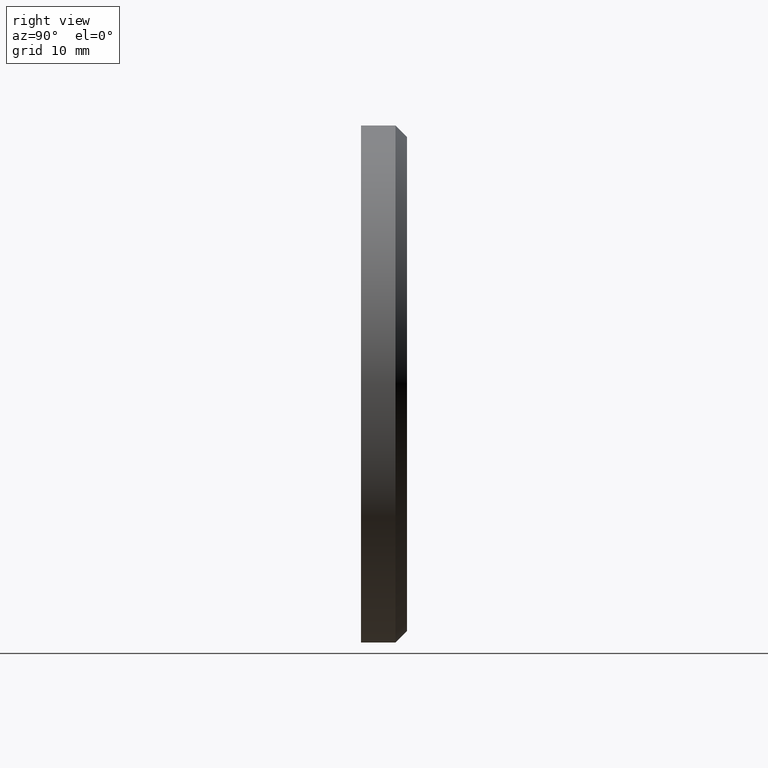
[diagram: clean part render]
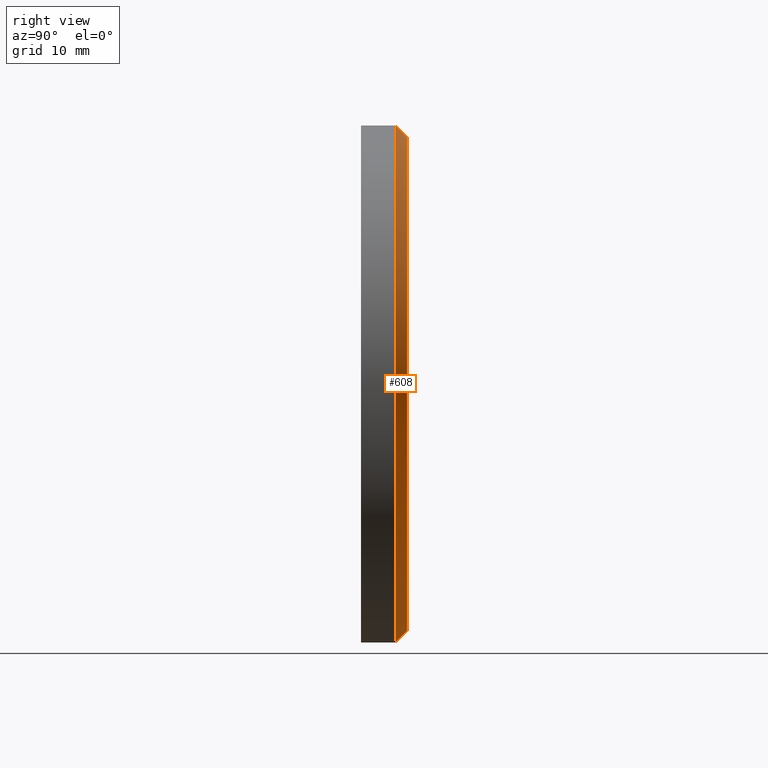
[diagram: same view with one face highlighted and labeled with its STEP entity id]
A machine part, right view. The second image highlights one B-rep face of the part: STEP entity #608.
In plain terms, the highlighted conical surface has half-angle 45 deg.
Its self-contained STEP definition (entity closure, byte-faithful):
#30 = VERTEX_POINT ( 'NONE', #8925 ) ;
#133 = EDGE_CURVE ( 'NONE', #8876, #4189, #2468, .T. ) ;
#455 = CIRCLE ( 'NONE', #8377, 22.50000000000000355 ) ;
#608 = ADVANCED_FACE ( 'NONE', ( #13740 ), #4078, .T. ) ;
#1132 = VECTOR ( 'NONE', #12255, 1000.000000000000000 ) ;
#2326 = CARTESIAN_POINT ( 'NONE',  ( 0.000000000000000000, 2.000000000000000000, -21.49999999999999289 ) ) ;
#2468 = CIRCLE ( 'NONE', #4518, 21.49999999999999289 ) ;
#3465 = DIRECTION ( 'NONE',  ( 0.000000000000000000, -0.7071067811865463515, -0.7071067811865487940 ) ) ;
#3472 = CARTESIAN_POINT ( 'NONE',  ( 2.694222958124176415E-15, 2.000000000000000000, 21.49999999999999289 ) ) ;
#4078 = CONICAL_SURFACE ( 'NONE', #12986, 21.49999999999999289, 0.7853981633974500554 ) ;
#4189 = VERTEX_POINT ( 'NONE', #5263 ) ;
#4518 = AXIS2_PLACEMENT_3D ( 'NONE', #9462, #10444, #6072 ) ;
#4720 = EDGE_LOOP ( 'NONE', ( #14202, #9654, #7778, #9630 ) ) ;
#4759 = CARTESIAN_POINT ( 'NONE',  ( 0.000000000000000000, 0.9999999999999922284, -22.50000000000000355 ) ) ;
#5263 = CARTESIAN_POINT ( 'NONE',  ( 0.000000000000000000, 2.000000000000000000, -21.49999999999999289 ) ) ;
#5311 = DIRECTION ( 'NONE',  ( 0.000000000000000000, -1.000000000000000000, 0.000000000000000000 ) ) ;
#6072 = DIRECTION ( 'NONE',  ( 0.000000000000000000, 0.000000000000000000, 1.000000000000000000 ) ) ;
#6626 = EDGE_CURVE ( 'NONE', #4189, #11314, #12920, .T. ) ;
#7143 = DIRECTION ( 'NONE',  ( 0.000000000000000000, 0.000000000000000000, 1.000000000000000000 ) ) ;
#7199 = DIRECTION ( 'NONE',  ( 0.000000000000000000, -1.000000000000000000, 0.000000000000000000 ) ) ;
#7778 = ORIENTED_EDGE ( 'NONE', *, *, #14397, .F. ) ;
#8005 = EDGE_CURVE ( 'NONE', #8876, #30, #13251, .T. ) ;
#8377 = AXIS2_PLACEMENT_3D ( 'NONE', #13931, #7199, #7143 ) ;
#8519 = DIRECTION ( 'NONE',  ( 0.000000000000000000, 0.000000000000000000, -1.000000000000000000 ) ) ;
#8657 = CARTESIAN_POINT ( 'NONE',  ( 0.000000000000000000, 2.000000000000000000, 0.000000000000000000 ) ) ;
#8876 = VERTEX_POINT ( 'NONE', #3472 ) ;
#8925 = CARTESIAN_POINT ( 'NONE',  ( 2.755455298081545172E-15, 0.9999999999999922284, 22.50000000000000355 ) ) ;
#9462 = CARTESIAN_POINT ( 'NONE',  ( 0.000000000000000000, 2.000000000000000000, 0.000000000000000000 ) ) ;
#9630 = ORIENTED_EDGE ( 'NONE', *, *, #6626, .F. ) ;
#9654 = ORIENTED_EDGE ( 'NONE', *, *, #8005, .T. ) ;
#10444 = DIRECTION ( 'NONE',  ( 0.000000000000000000, 1.000000000000000000, 0.000000000000000000 ) ) ;
#10645 = VECTOR ( 'NONE', #3465, 1000.000000000000000 ) ;
#11123 = CARTESIAN_POINT ( 'NONE',  ( 2.632990618166808052E-15, 2.000000000000000000, 21.49999999999999289 ) ) ;
#11314 = VERTEX_POINT ( 'NONE', #4759 ) ;
#12255 = DIRECTION ( 'NONE',  ( 8.659560562354950115E-17, -0.7071067811865463515, 0.7071067811865487940 ) ) ;
#12920 = LINE ( 'NONE', #2326, #10645 ) ;
#12986 = AXIS2_PLACEMENT_3D ( 'NONE', #8657, #5311, #8519 ) ;
#13251 = LINE ( 'NONE', #11123, #1132 ) ;
#13740 = FACE_OUTER_BOUND ( 'NONE', #4720, .T. ) ;
#13931 = CARTESIAN_POINT ( 'NONE',  ( 0.000000000000000000, 0.9999999999999922284, 0.000000000000000000 ) ) ;
#14202 = ORIENTED_EDGE ( 'NONE', *, *, #133, .F. ) ;
#14397 = EDGE_CURVE ( 'NONE', #11314, #30, #455, .T. ) ;